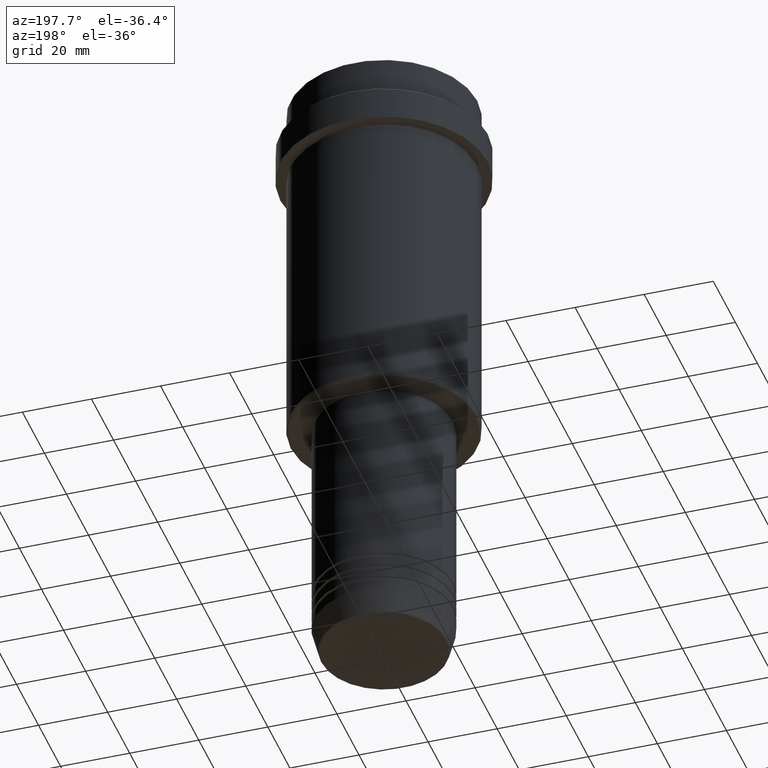
[diagram: clean part render]
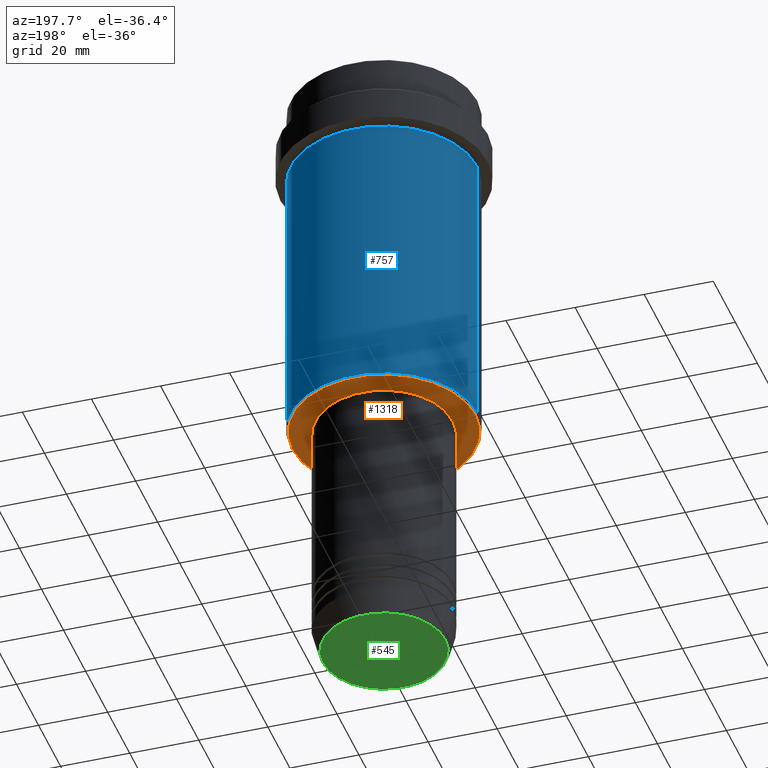
[diagram: same view with three faces highlighted in distinct colors, each labeled with its STEP entity id]
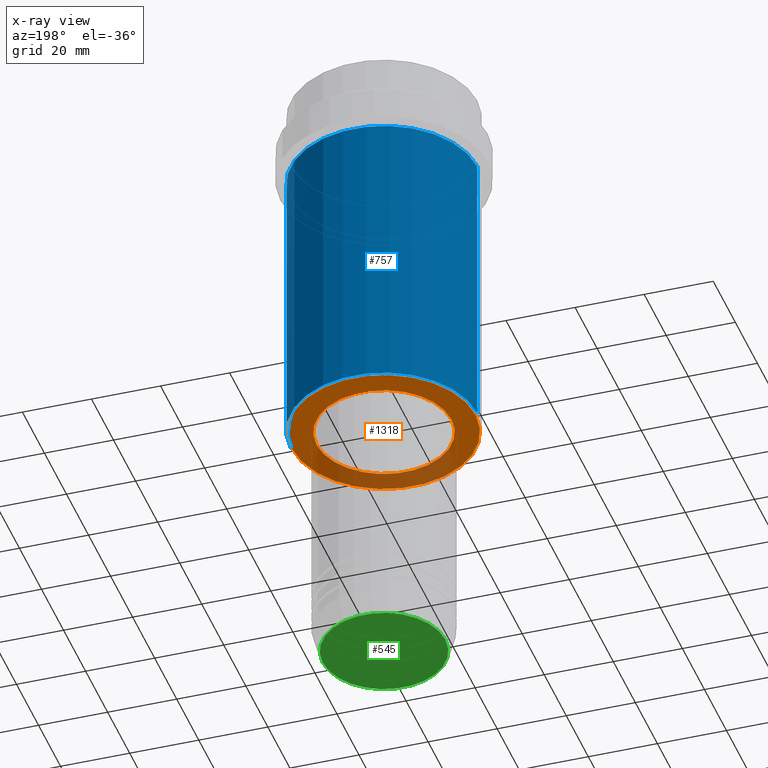
[diagram: x-ray of the same camera — body ghosted, the three highlighted faces saturated]
A machine part, auxiliary view with three faces highlighted in distinct colors.
The next image is the same camera in x-ray (body ghosted, the three faces saturated) — at least one of them is partly hidden behind the body in this view.
Their STEP definitions:

[orange] entity #1318 — the highlighted planar face has unit normal (0, 0, -1).
#5 = DIRECTION ( 'NONE',  ( -1.000000000000000000, 0.000000000000000000, 0.000000000000000000 ) ) ;
#11 = CARTESIAN_POINT ( 'NONE',  ( 0.000000000000000000, 27.00000000000000000, -108.0000000000000142 ) ) ;
#53 = VERTEX_POINT ( 'NONE', #1202 ) ;
#56 = CARTESIAN_POINT ( 'NONE',  ( 0.000000000000000000, 0.000000000000000000, -108.0000000000000142 ) ) ;
#136 = DIRECTION ( 'NONE',  ( 0.000000000000000000, 0.000000000000000000, -1.000000000000000000 ) ) ;
#154 = AXIS2_PLACEMENT_3D ( 'NONE', #594, #893, #1019 ) ;
#186 = DIRECTION ( 'NONE',  ( 0.000000000000000000, 0.000000000000000000, -1.000000000000000000 ) ) ;
#284 = DIRECTION ( 'NONE',  ( -0.000000000000000000, -0.000000000000000000, 1.000000000000000000 ) ) ;
#354 = CIRCLE ( 'NONE', #535, 26.49999999999996803 ) ;
#395 = CARTESIAN_POINT ( 'NONE',  ( 0.000000000000000000, 0.000000000000000000, -108.0000000000000142 ) ) ;
#408 = DIRECTION ( 'NONE',  ( 1.000000000000000000, 0.000000000000000000, 0.000000000000000000 ) ) ;
#422 = AXIS2_PLACEMENT_3D ( 'NONE', #728, #186, #625 ) ;
#427 = VERTEX_POINT ( 'NONE', #664 ) ;
#428 = CARTESIAN_POINT ( 'NONE',  ( 26.49999999999996803, 0.000000000000000000, -108.0000000000000142 ) ) ;
#446 = CIRCLE ( 'NONE', #422, 26.49999999999996803 ) ;
#447 = VERTEX_POINT ( 'NONE', #1292 ) ;
#535 = AXIS2_PLACEMENT_3D ( 'NONE', #56, #1394, #5 ) ;
#577 = FACE_OUTER_BOUND ( 'NONE', #667, .T. ) ;
#594 = CARTESIAN_POINT ( 'NONE',  ( 0.000000000000000000, 0.000000000000000000, -108.0000000000000142 ) ) ;
#625 = DIRECTION ( 'NONE',  ( -1.000000000000000000, 0.000000000000000000, 0.000000000000000000 ) ) ;
#659 = DIRECTION ( 'NONE',  ( -1.000000000000000000, 0.000000000000000000, -0.000000000000000000 ) ) ;
#664 = CARTESIAN_POINT ( 'NONE',  ( -19.50000000000000000, 2.388061258337338939E-15, -108.0000000000000142 ) ) ;
#667 = EDGE_LOOP ( 'NONE', ( #837, #1123 ) ) ;
#699 = ORIENTED_EDGE ( 'NONE', *, *, #714, .T. ) ;
#714 = EDGE_CURVE ( 'NONE', #427, #53, #1221, .T. ) ;
#728 = CARTESIAN_POINT ( 'NONE',  ( 0.000000000000000000, 0.000000000000000000, -108.0000000000000142 ) ) ;
#734 = EDGE_CURVE ( 'NONE', #447, #1011, #446, .T. ) ;
#765 = AXIS2_PLACEMENT_3D ( 'NONE', #11, #136, #659 ) ;
#788 = CIRCLE ( 'NONE', #1399, 19.50000000000000000 ) ;
#800 = EDGE_CURVE ( 'NONE', #53, #427, #788, .T. ) ;
#837 = ORIENTED_EDGE ( 'NONE', *, *, #874, .T. ) ;
#874 = EDGE_CURVE ( 'NONE', #1011, #447, #354, .T. ) ;
#889 = FACE_BOUND ( 'NONE', #1071, .T. ) ;
#893 = DIRECTION ( 'NONE',  ( -0.000000000000000000, -0.000000000000000000, 1.000000000000000000 ) ) ;
#983 = PLANE ( 'NONE',  #765 ) ;
#993 = ORIENTED_EDGE ( 'NONE', *, *, #800, .T. ) ;
#1011 = VERTEX_POINT ( 'NONE', #428 ) ;
#1019 = DIRECTION ( 'NONE',  ( 1.000000000000000000, 0.000000000000000000, 0.000000000000000000 ) ) ;
#1071 = EDGE_LOOP ( 'NONE', ( #993, #699 ) ) ;
#1123 = ORIENTED_EDGE ( 'NONE', *, *, #734, .T. ) ;
#1202 = CARTESIAN_POINT ( 'NONE',  ( 19.50000000000000000, 0.000000000000000000, -108.0000000000000142 ) ) ;
#1221 = CIRCLE ( 'NONE', #154, 19.50000000000000000 ) ;
#1292 = CARTESIAN_POINT ( 'NONE',  ( -26.49999999999996803, 3.275930187719167580E-15, -108.0000000000000142 ) ) ;
#1318 = ADVANCED_FACE ( 'NONE', ( #577, #889 ), #983, .T. ) ;
#1394 = DIRECTION ( 'NONE',  ( 0.000000000000000000, 0.000000000000000000, -1.000000000000000000 ) ) ;
#1399 = AXIS2_PLACEMENT_3D ( 'NONE', #395, #284, #408 ) ;

[blue] entity #757 — the highlighted cylindrical surface (partial cylindrical patch) has radius 27 mm, axis along (-0, -0, 1).
#77 = FACE_OUTER_BOUND ( 'NONE', #663, .T. ) ;
#85 = CIRCLE ( 'NONE', #517, 26.99999999999999645 ) ;
#161 = VERTEX_POINT ( 'NONE', #1350 ) ;
#183 = DIRECTION ( 'NONE',  ( 1.000000000000000000, 0.000000000000000000, 0.000000000000000000 ) ) ;
#363 = ORIENTED_EDGE ( 'NONE', *, *, #982, .F. ) ;
#399 = CARTESIAN_POINT ( 'NONE',  ( -26.99999999999999645, 3.306546357697853339E-15, -107.4999999999999716 ) ) ;
#416 = CARTESIAN_POINT ( 'NONE',  ( 26.99999999999999645, 0.000000000000000000, 0.000000000000000000 ) ) ;
#421 = CARTESIAN_POINT ( 'NONE',  ( 0.000000000000000000, 0.000000000000000000, -107.4999999999999716 ) ) ;
#450 = LINE ( 'NONE', #416, #653 ) ;
#498 = CIRCLE ( 'NONE', #678, 26.99999999999999645 ) ;
#507 = CARTESIAN_POINT ( 'NONE',  ( 0.000000000000000000, 0.000000000000000000, 0.000000000000000000 ) ) ;
#517 = AXIS2_PLACEMENT_3D ( 'NONE', #421, #1385, #1180 ) ;
#537 = VECTOR ( 'NONE', #1018, 1000.000000000000000 ) ;
#581 = CARTESIAN_POINT ( 'NONE',  ( -26.99999999999999645, 3.306546357697853339E-15, 0.000000000000000000 ) ) ;
#621 = CYLINDRICAL_SURFACE ( 'NONE', #740, 26.99999999999999645 ) ;
#653 = VECTOR ( 'NONE', #1416, 1000.000000000000000 ) ;
#663 = EDGE_LOOP ( 'NONE', ( #750, #849, #1191, #363 ) ) ;
#668 = LINE ( 'NONE', #581, #537 ) ;
#678 = AXIS2_PLACEMENT_3D ( 'NONE', #846, #959, #1285 ) ;
#740 = AXIS2_PLACEMENT_3D ( 'NONE', #507, #1164, #183 ) ;
#750 = ORIENTED_EDGE ( 'NONE', *, *, #1238, .T. ) ;
#757 = ADVANCED_FACE ( 'NONE', ( #77 ), #621, .T. ) ;
#791 = VERTEX_POINT ( 'NONE', #399 ) ;
#846 = CARTESIAN_POINT ( 'NONE',  ( 0.000000000000000000, 0.000000000000000000, -23.00000000000000000 ) ) ;
#849 = ORIENTED_EDGE ( 'NONE', *, *, #1126, .T. ) ;
#897 = VERTEX_POINT ( 'NONE', #1078 ) ;
#959 = DIRECTION ( 'NONE',  ( -0.000000000000000000, -0.000000000000000000, 1.000000000000000000 ) ) ;
#982 = EDGE_CURVE ( 'NONE', #1055, #161, #450, .T. ) ;
#1018 = DIRECTION ( 'NONE',  ( -0.000000000000000000, -0.000000000000000000, 1.000000000000000000 ) ) ;
#1055 = VERTEX_POINT ( 'NONE', #1219 ) ;
#1078 = CARTESIAN_POINT ( 'NONE',  ( -26.99999999999999645, 3.306546357697853339E-15, -23.00000000000000000 ) ) ;
#1126 = EDGE_CURVE ( 'NONE', #791, #897, #668, .T. ) ;
#1164 = DIRECTION ( 'NONE',  ( -0.000000000000000000, -0.000000000000000000, 1.000000000000000000 ) ) ;
#1180 = DIRECTION ( 'NONE',  ( -1.000000000000000000, 0.000000000000000000, 0.000000000000000000 ) ) ;
#1191 = ORIENTED_EDGE ( 'NONE', *, *, #1213, .F. ) ;
#1213 = EDGE_CURVE ( 'NONE', #161, #897, #498, .T. ) ;
#1219 = CARTESIAN_POINT ( 'NONE',  ( 26.99999999999999645, 0.000000000000000000, -107.4999999999999716 ) ) ;
#1238 = EDGE_CURVE ( 'NONE', #1055, #791, #85, .T. ) ;
#1285 = DIRECTION ( 'NONE',  ( 1.000000000000000000, 0.000000000000000000, 0.000000000000000000 ) ) ;
#1350 = CARTESIAN_POINT ( 'NONE',  ( 26.99999999999999645, 0.000000000000000000, -23.00000000000000000 ) ) ;
#1385 = DIRECTION ( 'NONE',  ( -0.000000000000000000, -0.000000000000000000, 1.000000000000000000 ) ) ;
#1416 = DIRECTION ( 'NONE',  ( -0.000000000000000000, -0.000000000000000000, 1.000000000000000000 ) ) ;

[green] entity #545 — the highlighted planar face has unit normal (0, -0, 1).
#17 = CARTESIAN_POINT ( 'NONE',  ( 0.000000000000000000, 0.000000000000000000, -183.0000000000000000 ) ) ;
#61 = AXIS2_PLACEMENT_3D ( 'NONE', #17, #278, #1245 ) ;
#172 = EDGE_CURVE ( 'NONE', #1076, #762, #1251, .T. ) ;
#278 = DIRECTION ( 'NONE',  ( 0.000000000000000000, 0.000000000000000000, -1.000000000000000000 ) ) ;
#311 = CIRCLE ( 'NONE', #61, 17.74069215899266183 ) ;
#369 = CARTESIAN_POINT ( 'NONE',  ( -17.74069215899266183, 2.202181136001357564E-15, -183.0000000000000000 ) ) ;
#458 = DIRECTION ( 'NONE',  ( 0.000000000000000000, -0.000000000000000000, 1.000000000000000000 ) ) ;
#545 = ADVANCED_FACE ( 'NONE', ( #770 ), #888, .F. ) ;
#573 = ORIENTED_EDGE ( 'NONE', *, *, #622, .T. ) ;
#592 = AXIS2_PLACEMENT_3D ( 'NONE', #1149, #608, #1021 ) ;
#608 = DIRECTION ( 'NONE',  ( 0.000000000000000000, 0.000000000000000000, -1.000000000000000000 ) ) ;
#622 = EDGE_CURVE ( 'NONE', #762, #1076, #311, .T. ) ;
#686 = ORIENTED_EDGE ( 'NONE', *, *, #172, .T. ) ;
#762 = VERTEX_POINT ( 'NONE', #1277 ) ;
#770 = FACE_OUTER_BOUND ( 'NONE', #1163, .T. ) ;
#832 = AXIS2_PLACEMENT_3D ( 'NONE', #1319, #458, #894 ) ;
#888 = PLANE ( 'NONE',  #832 ) ;
#894 = DIRECTION ( 'NONE',  ( 1.000000000000000000, 0.000000000000000000, 0.000000000000000000 ) ) ;
#1021 = DIRECTION ( 'NONE',  ( 1.000000000000000000, 0.000000000000000000, 0.000000000000000000 ) ) ;
#1076 = VERTEX_POINT ( 'NONE', #369 ) ;
#1149 = CARTESIAN_POINT ( 'NONE',  ( 0.000000000000000000, 0.000000000000000000, -183.0000000000000000 ) ) ;
#1163 = EDGE_LOOP ( 'NONE', ( #573, #686 ) ) ;
#1245 = DIRECTION ( 'NONE',  ( 1.000000000000000000, 0.000000000000000000, 0.000000000000000000 ) ) ;
#1251 = CIRCLE ( 'NONE', #592, 17.74069215899266183 ) ;
#1277 = CARTESIAN_POINT ( 'NONE',  ( 17.74069215899266183, 0.000000000000000000, -183.0000000000000000 ) ) ;
#1319 = CARTESIAN_POINT ( 'NONE',  ( 0.000000000000000000, 0.000000000000000000, -183.0000000000000000 ) ) ;